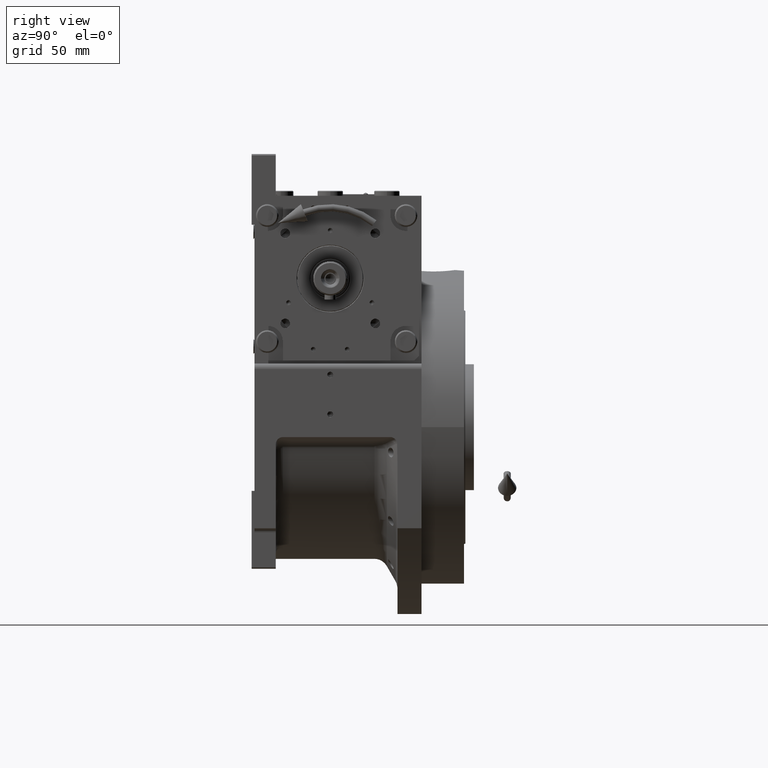
[diagram: clean part render]
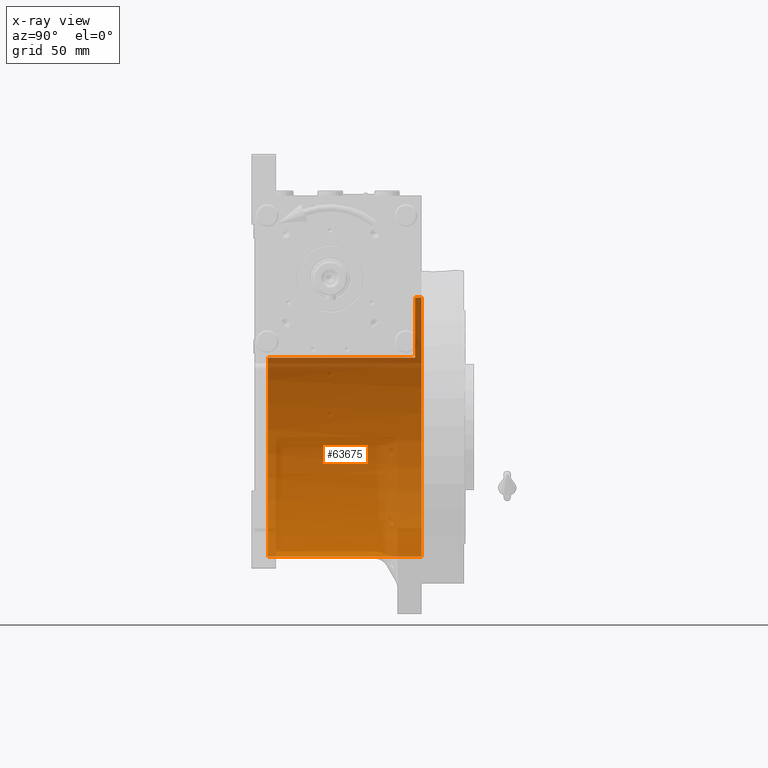
[diagram: x-ray — body ghosted, one internal face saturated and labeled with its STEP entity id]
A machine part, right view, then the same camera in x-ray: the body is ghosted and one INTERNAL B-rep face — a face not visible from any outside direction — is saturated and labeled: STEP entity #63675.
In plain terms, the highlighted cylindrical surface (partial cylindrical patch) has radius 91.5 mm, axis along (0, -1, 0).
Its self-contained STEP definition (entity closure, byte-faithful):
#2076 = EDGE_CURVE ( 'NONE', #15857, #63748, #62179, .T. ) ;
#2494 = DIRECTION ( 'NONE',  ( 0.000000000000000000, 0.000000000000000000, 1.000000000000000000 ) ) ;
#3427 = ORIENTED_EDGE ( 'NONE', *, *, #57849, .F. ) ;
#4281 = DIRECTION ( 'NONE',  ( 0.000000000000000000, 0.000000000000000000, -1.000000000000000000 ) ) ;
#4621 = CARTESIAN_POINT ( 'NONE',  ( 1.120551821219827868E-14, 60.00000000000000000, 91.50000000000000000 ) ) ;
#4809 = ORIENTED_EDGE ( 'NONE', *, *, #2076, .F. ) ;
#9822 = VERTEX_POINT ( 'NONE', #51014 ) ;
#10447 = CARTESIAN_POINT ( 'NONE',  ( -77.27386362800814368, -44.00000000000000000, 49.00000000000000000 ) ) ;
#12704 = CIRCLE ( 'NONE', #19383, 91.50000000000000000 ) ;
#14004 = FACE_OUTER_BOUND ( 'NONE', #23449, .T. ) ;
#14195 = DIRECTION ( 'NONE',  ( 0.000000000000000000, -1.000000000000000000, 0.000000000000000000 ) ) ;
#14683 = DIRECTION ( 'NONE',  ( 1.776356839400250465E-15, 0.000000000000000000, -1.000000000000000000 ) ) ;
#15487 = VERTEX_POINT ( 'NONE', #10447 ) ;
#15857 = VERTEX_POINT ( 'NONE', #47339 ) ;
#15922 = CARTESIAN_POINT ( 'NONE',  ( 0.000000000000000000, -44.00000000000000000, -91.50000000000000000 ) ) ;
#17189 = VECTOR ( 'NONE', #14195, 1000.000000000000000 ) ;
#17503 = VERTEX_POINT ( 'NONE', #20669 ) ;
#18904 = DIRECTION ( 'NONE',  ( 0.000000000000000000, -1.000000000000000000, 0.000000000000000000 ) ) ;
#19383 = AXIS2_PLACEMENT_3D ( 'NONE', #21360, #24094, #2494 ) ;
#20669 = CARTESIAN_POINT ( 'NONE',  ( 1.120551821219827868E-14, 64.50000000000000000, 91.50000000000000000 ) ) ;
#21360 = CARTESIAN_POINT ( 'NONE',  ( 0.000000000000000000, -44.00000000000000000, 0.000000000000000000 ) ) ;
#21614 = AXIS2_PLACEMENT_3D ( 'NONE', #26390, #26058, #47662 ) ;
#22255 = ORIENTED_EDGE ( 'NONE', *, *, #46034, .F. ) ;
#23449 = EDGE_LOOP ( 'NONE', ( #3427, #55792, #4809, #56725, #33464, #22255 ) ) ;
#24094 = DIRECTION ( 'NONE',  ( 0.000000000000000000, 1.000000000000000000, 0.000000000000000000 ) ) ;
#26058 = DIRECTION ( 'NONE',  ( -0.000000000000000000, -1.000000000000000000, -0.000000000000000000 ) ) ;
#26390 = CARTESIAN_POINT ( 'NONE',  ( 0.000000000000000000, 64.50000000000000000, 0.000000000000000000 ) ) ;
#27022 = CIRCLE ( 'NONE', #21614, 91.50000000000000000 ) ;
#29238 = LINE ( 'NONE', #62045, #17189 ) ;
#31968 = VECTOR ( 'NONE', #55886, 1000.000000000000000 ) ;
#32072 = AXIS2_PLACEMENT_3D ( 'NONE', #62184, #35640, #14683 ) ;
#33464 = ORIENTED_EDGE ( 'NONE', *, *, #60047, .F. ) ;
#33587 = CARTESIAN_POINT ( 'NONE',  ( -77.27386362800812947, 69.00000000000004263, 48.99999999999998579 ) ) ;
#35640 = DIRECTION ( 'NONE',  ( 0.000000000000000000, 1.000000000000000000, 0.000000000000000000 ) ) ;
#35697 = DIRECTION ( 'NONE',  ( 0.000000000000000000, -1.000000000000000000, 0.000000000000000000 ) ) ;
#46034 = EDGE_CURVE ( 'NONE', #9822, #64580, #56289, .T. ) ;
#46481 = CARTESIAN_POINT ( 'NONE',  ( 0.000000000000000000, 69.00000000000004263, 0.000000000000000000 ) ) ;
#47339 = CARTESIAN_POINT ( 'NONE',  ( -77.27386362800814368, 60.00000000000000000, 48.99999999999998579 ) ) ;
#47662 = DIRECTION ( 'NONE',  ( 0.000000000000000000, 0.000000000000000000, 1.000000000000000000 ) ) ;
#49030 = EDGE_CURVE ( 'NONE', #15487, #15857, #55219, .T. ) ;
#51014 = CARTESIAN_POINT ( 'NONE',  ( 0.000000000000000000, 64.50000000000000000, -91.50000000000000000 ) ) ;
#55219 = LINE ( 'NONE', #33587, #31968 ) ;
#55792 = ORIENTED_EDGE ( 'NONE', *, *, #64400, .T. ) ;
#55886 = DIRECTION ( 'NONE',  ( -0.000000000000000000, 1.000000000000000000, -0.000000000000000000 ) ) ;
#56289 = LINE ( 'NONE', #61547, #56332 ) ;
#56332 = VECTOR ( 'NONE', #35697, 1000.000000000000000 ) ;
#56725 = ORIENTED_EDGE ( 'NONE', *, *, #49030, .F. ) ;
#57849 = EDGE_CURVE ( 'NONE', #17503, #9822, #27022, .T. ) ;
#59918 = AXIS2_PLACEMENT_3D ( 'NONE', #46481, #18904, #4281 ) ;
#60047 = EDGE_CURVE ( 'NONE', #64580, #15487, #12704, .T. ) ;
#61547 = CARTESIAN_POINT ( 'NONE',  ( 0.000000000000000000, 69.00000000000004263, -91.50000000000000000 ) ) ;
#62045 = CARTESIAN_POINT ( 'NONE',  ( 1.120551821219827868E-14, 69.00000000000004263, 91.50000000000000000 ) ) ;
#62179 = CIRCLE ( 'NONE', #32072, 91.50000000000000000 ) ;
#62184 = CARTESIAN_POINT ( 'NONE',  ( 0.000000000000000000, 60.00000000000000000, 0.000000000000000000 ) ) ;
#63675 = ADVANCED_FACE ( 'NONE', ( #14004 ), #67813, .F. ) ;
#63748 = VERTEX_POINT ( 'NONE', #4621 ) ;
#64400 = EDGE_CURVE ( 'NONE', #17503, #63748, #29238, .T. ) ;
#64580 = VERTEX_POINT ( 'NONE', #15922 ) ;
#67813 = CYLINDRICAL_SURFACE ( 'NONE', #59918, 91.50000000000000000 ) ;